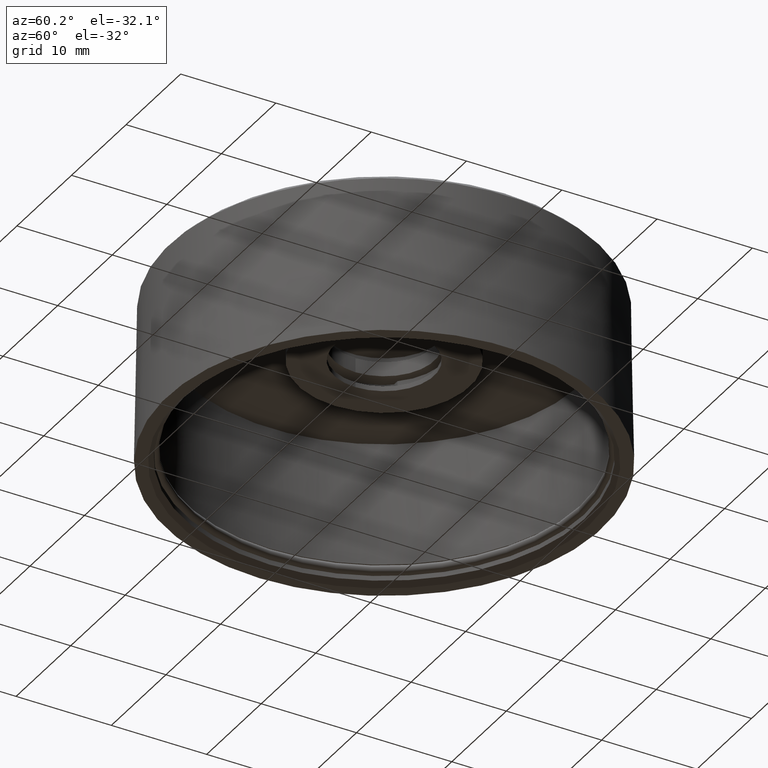
[diagram: clean part render]
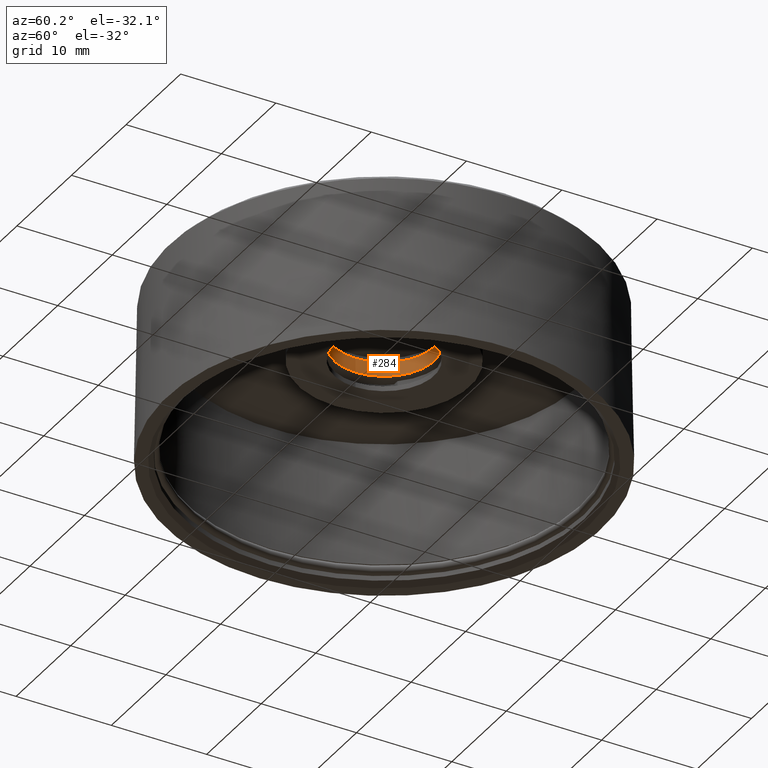
[diagram: same view with one face highlighted and labeled with its STEP entity id]
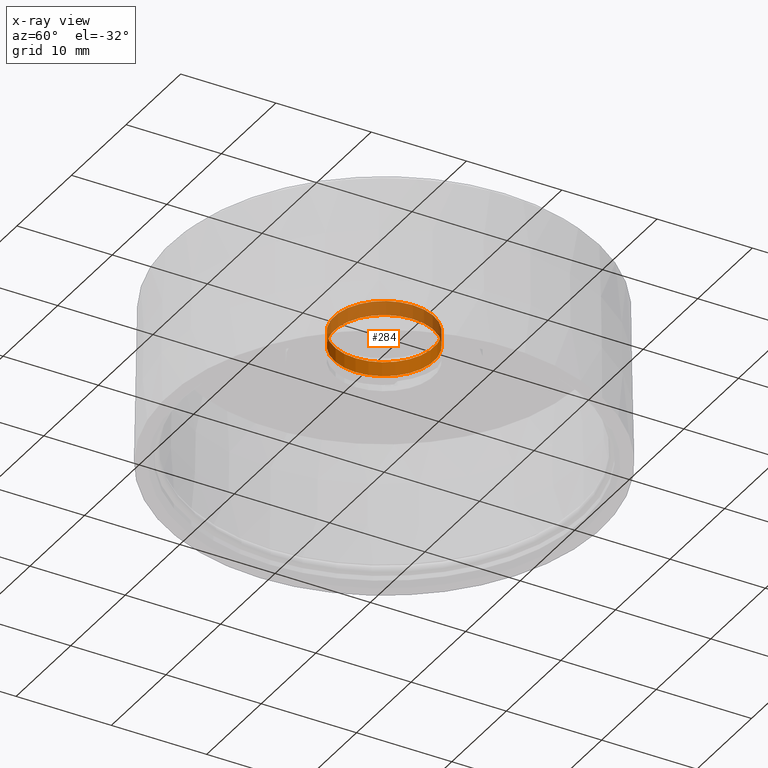
[diagram: x-ray of the same camera — body ghosted, the highlighted face saturated]
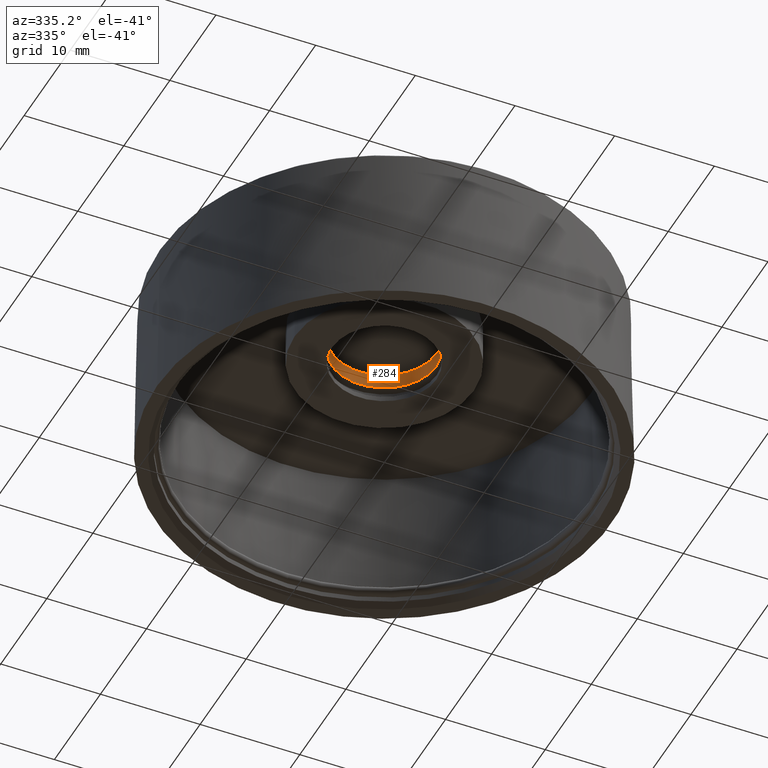
[diagram: same view with one face highlighted and labeled with its STEP entity id]
A machine part, auxiliary view. The second image highlights one B-rep face of the part: STEP entity #284.
The next image is the same camera in x-ray: the body ghosted, the highlighted face saturated — about 50% of this face is hidden behind the body in this view.
A second angle (auxiliary view) of the same face is appended — the face is thin or edge-on in the first view.
In plain terms, the highlighted cylindrical surface (bore or boss wall) has radius 5.25 mm, axis along (0, 0, -1).
Its self-contained STEP definition (entity closure, byte-faithful):
#7 = ORIENTED_EDGE ( 'NONE', *, *, #17, .F. ) ;
#17 = EDGE_CURVE ( 'NONE', #545, #545, #121, .T. ) ;
#31 = DIRECTION ( 'NONE',  ( 0.000000000000000000, 0.000000000000000000, 1.000000000000000000 ) ) ;
#33 = DIRECTION ( 'NONE',  ( -1.000000000000000000, 0.000000000000000000, 0.000000000000000000 ) ) ;
#121 = CIRCLE ( 'NONE', #816, 0.2066929133858267931 ) ;
#217 = AXIS2_PLACEMENT_3D ( 'NONE', #384, #321, #316 ) ;
#220 = ORIENTED_EDGE ( 'NONE', *, *, #434, .F. ) ;
#236 = AXIS2_PLACEMENT_3D ( 'NONE', #403, #412, #558 ) ;
#256 = CIRCLE ( 'NONE', #236, 0.2066929133858267931 ) ;
#284 = ADVANCED_FACE ( 'NONE', ( #547, #767 ), #541, .F. ) ;
#316 = DIRECTION ( 'NONE',  ( -1.000000000000000000, 0.000000000000000000, 0.000000000000000000 ) ) ;
#321 = DIRECTION ( 'NONE',  ( 0.000000000000000000, 0.000000000000000000, -1.000000000000000000 ) ) ;
#384 = CARTESIAN_POINT ( 'NONE',  ( 0.000000000000000000, 0.000000000000000000, 0.5551181102362204856 ) ) ;
#403 = CARTESIAN_POINT ( 'NONE',  ( 0.000000000000000000, 0.000000000000000000, 0.5551181102362204856 ) ) ;
#410 = VERTEX_POINT ( 'NONE', #471 ) ;
#412 = DIRECTION ( 'NONE',  ( 0.000000000000000000, 0.000000000000000000, -1.000000000000000000 ) ) ;
#434 = EDGE_CURVE ( 'NONE', #410, #410, #256, .T. ) ;
#471 = CARTESIAN_POINT ( 'NONE',  ( -0.2066929133858267931, 0.000000000000000000, 0.5551181102362204856 ) ) ;
#541 = CYLINDRICAL_SURFACE ( 'NONE', #217, 0.2066929133858267931 ) ;
#545 = VERTEX_POINT ( 'NONE', #792 ) ;
#547 = FACE_OUTER_BOUND ( 'NONE', #947, .T. ) ;
#558 = DIRECTION ( 'NONE',  ( -1.000000000000000000, 0.000000000000000000, 0.000000000000000000 ) ) ;
#767 = FACE_OUTER_BOUND ( 'NONE', #887, .T. ) ;
#792 = CARTESIAN_POINT ( 'NONE',  ( -0.2066929133858267931, 0.000000000000000000, 0.4960629921259842590 ) ) ;
#816 = AXIS2_PLACEMENT_3D ( 'NONE', #876, #31, #33 ) ;
#876 = CARTESIAN_POINT ( 'NONE',  ( 0.000000000000000000, 0.000000000000000000, 0.4960629921259842590 ) ) ;
#887 = EDGE_LOOP ( 'NONE', ( #220 ) ) ;
#947 = EDGE_LOOP ( 'NONE', ( #7 ) ) ;